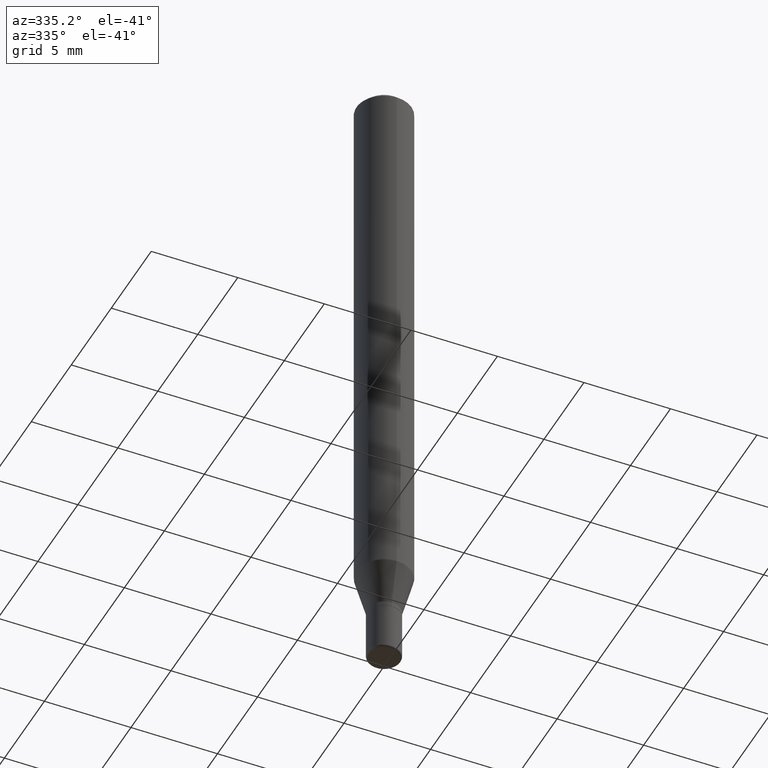
[diagram: clean part render]
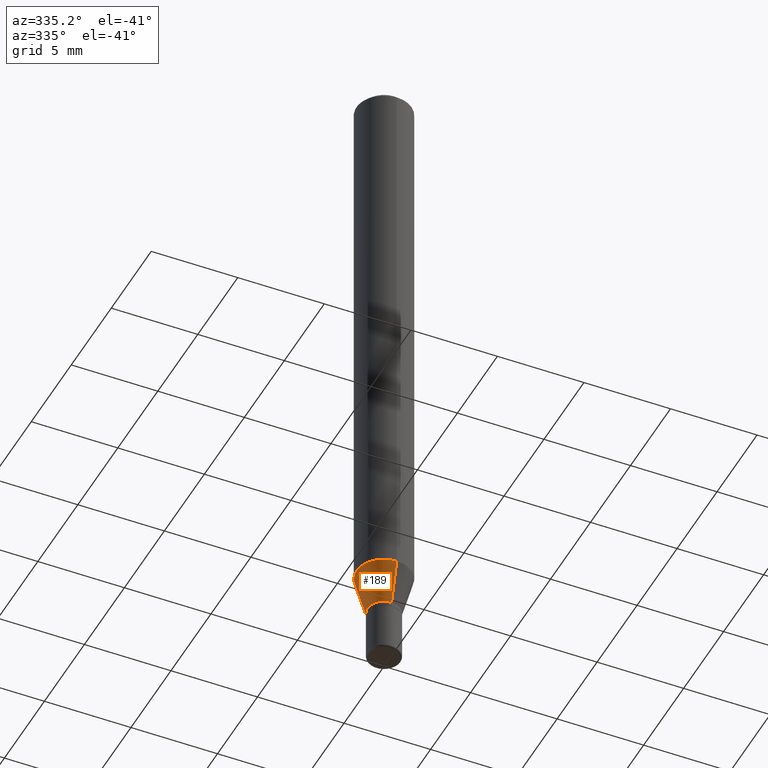
[diagram: same view with one face highlighted and labeled with its STEP entity id]
A machine part, auxiliary view. The second image highlights one B-rep face of the part: STEP entity #189.
In plain terms, the highlighted conical surface has half-angle 15 deg.
Its self-contained STEP definition (entity closure, byte-faithful):
#23 = CIRCLE ( 'NONE', #60, 0.03750000000000009576 ) ;
#26 = DIRECTION ( 'NONE',  ( -6.982962677686265922E-15, -1.000000000000000000, 0.000000000000000000 ) ) ;
#31 = CIRCLE ( 'NONE', #498, 0.06250000000000000000 ) ;
#60 = AXIS2_PLACEMENT_3D ( 'NONE', #365, #82, #255 ) ;
#82 = DIRECTION ( 'NONE',  ( -2.445491189389452753E-29, 3.491449284820591825E-15, 1.000000000000000000 ) ) ;
#86 = VERTEX_POINT ( 'NONE', #270 ) ;
#97 = VERTEX_POINT ( 'NONE', #238 ) ;
#98 = DIRECTION ( 'NONE',  ( -2.445491189389452753E-29, 3.491449284820591825E-15, 1.000000000000000000 ) ) ;
#105 = DIRECTION ( 'NONE',  ( -2.445491189389452753E-29, 3.491449284820591825E-15, 1.000000000000000000 ) ) ;
#135 = CARTESIAN_POINT ( 'NONE',  ( -4.364351673553605094E-16, -0.06250000000000451028, -1.283698729810778483 ) ) ;
#136 = EDGE_CURVE ( 'NONE', #448, #86, #23, .T. ) ;
#138 = VECTOR ( 'NONE', #357, 39.37007874015748854 ) ;
#141 = LINE ( 'NONE', #351, #392 ) ;
#189 = ADVANCED_FACE ( 'NONE', ( #387 ), #478, .T. ) ;
#203 = EDGE_LOOP ( 'NONE', ( #324, #253, #378, #356 ) ) ;
#216 = VERTEX_POINT ( 'NONE', #135 ) ;
#228 = CARTESIAN_POINT ( 'NONE',  ( -2.618611004132019681E-16, -0.03750000000000490441, -1.377000000000000446 ) ) ;
#229 = AXIS2_PLACEMENT_3D ( 'NONE', #302, #105, #26 ) ;
#233 = EDGE_CURVE ( 'NONE', #97, #216, #31, .T. ) ;
#238 = CARTESIAN_POINT ( 'NONE',  ( 4.440892098500937762E-16, 0.06249999999999548278, -1.283698729810779149 ) ) ;
#253 = ORIENTED_EDGE ( 'NONE', *, *, #136, .T. ) ;
#255 = DIRECTION ( 'NONE',  ( -6.982962677686265922E-15, -1.000000000000000000, 0.000000000000000000 ) ) ;
#270 = CARTESIAN_POINT ( 'NONE',  ( -2.618611004132019681E-16, -0.03750000000000490441, -1.377000000000000446 ) ) ;
#302 = CARTESIAN_POINT ( 'NONE',  ( 3.367441367789276966E-29, -4.807725665197956479E-15, -1.377000000000000446 ) ) ;
#309 = CARTESIAN_POINT ( 'NONE',  ( 3.139273933582690948E-29, -4.481969012122946098E-15, -1.283698729810778927 ) ) ;
#324 = ORIENTED_EDGE ( 'NONE', *, *, #342, .F. ) ;
#342 = EDGE_CURVE ( 'NONE', #448, #97, #141, .T. ) ;
#351 = CARTESIAN_POINT ( 'NONE',  ( 2.664535259100718753E-16, 0.03749999999999528710, -1.377000000000000446 ) ) ;
#356 = ORIENTED_EDGE ( 'NONE', *, *, #233, .F. ) ;
#357 = DIRECTION ( 'NONE',  ( -1.807323732225325406E-15, -0.2588190451025175198, 0.9659258262890690894 ) ) ;
#365 = CARTESIAN_POINT ( 'NONE',  ( 3.367441367789276966E-29, -4.807725665197956479E-15, -1.377000000000000446 ) ) ;
#368 = EDGE_CURVE ( 'NONE', #86, #216, #434, .T. ) ;
#378 = ORIENTED_EDGE ( 'NONE', *, *, #368, .T. ) ;
#387 = FACE_OUTER_BOUND ( 'NONE', #203, .T. ) ;
#392 = VECTOR ( 'NONE', #514, 39.37007874015748854 ) ;
#395 = CARTESIAN_POINT ( 'NONE',  ( 3.552713678800830476E-16, 0.03749999999999528710, -1.377000000000000446 ) ) ;
#425 = DIRECTION ( 'NONE',  ( -6.982962677686265922E-15, -1.000000000000000000, 4.370956789862821150E-15 ) ) ;
#434 = LINE ( 'NONE', #228, #138 ) ;
#448 = VERTEX_POINT ( 'NONE', #395 ) ;
#478 = CONICAL_SURFACE ( 'NONE', #229, 0.03750000000000009576, 0.2617993877991495744 ) ;
#498 = AXIS2_PLACEMENT_3D ( 'NONE', #309, #98, #425 ) ;
#514 = DIRECTION ( 'NONE',  ( 1.839019923739595582E-15, 0.2588190451025242922, 0.9659258262890673130 ) ) ;